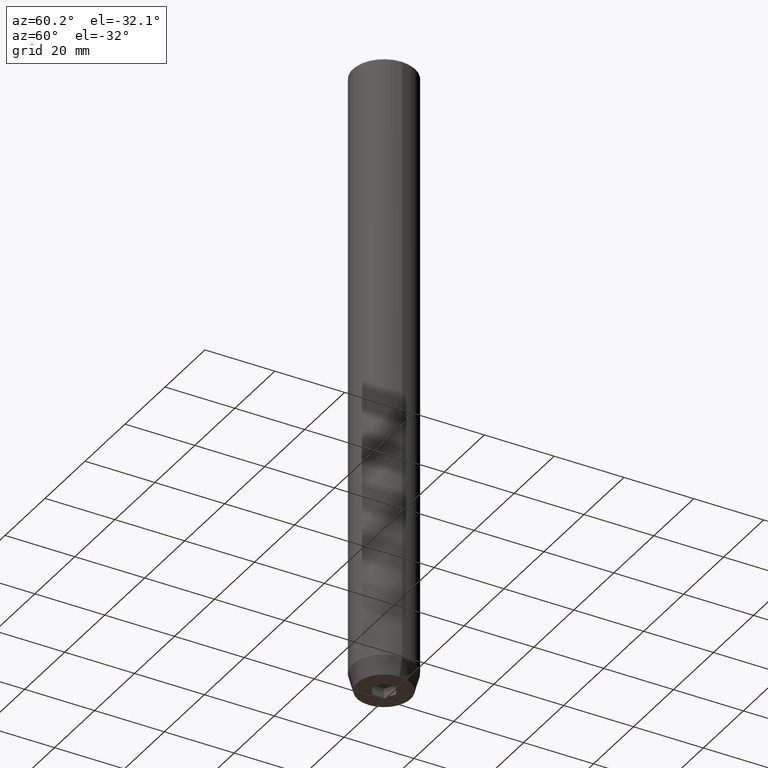
[diagram: clean part render]
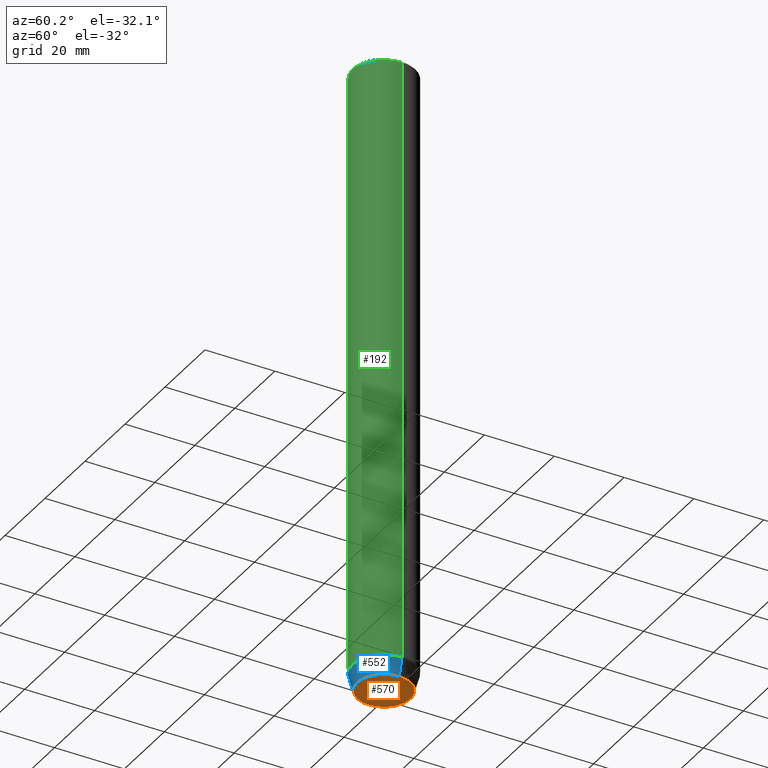
[diagram: same view with three faces highlighted in distinct colors, each labeled with its STEP entity id]
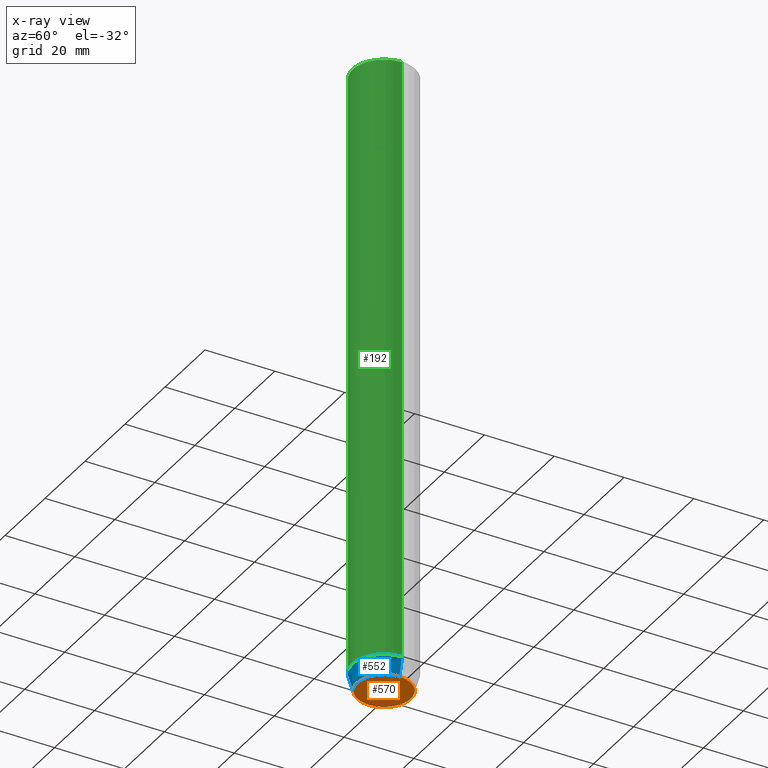
[diagram: x-ray of the same camera — body ghosted, the three highlighted faces saturated]
A machine part, auxiliary view with three faces highlighted in distinct colors.
The next image is the same camera in x-ray (body ghosted, the three faces saturated) — at least one of them is partly hidden behind the body in this view.
Their STEP definitions:

[orange] entity #570 — the highlighted planar face has unit normal (0, 0, -1).
#1 = EDGE_CURVE ( 'NONE', #370, #378, #107, .T. ) ;
#19 = VERTEX_POINT ( 'NONE', #318 ) ;
#23 = DIRECTION ( 'NONE',  ( -0.000000000000000000, -0.000000000000000000, 1.000000000000000000 ) ) ;
#38 = LINE ( 'NONE', #343, #577 ) ;
#41 = CARTESIAN_POINT ( 'NONE',  ( -3.000000000000000888, 1.732050807568876527, -180.0000000000000000 ) ) ;
#43 = LINE ( 'NONE', #92, #575 ) ;
#51 = DIRECTION ( 'NONE',  ( 0.8660254037844387076, 0.4999999999999999445, 0.000000000000000000 ) ) ;
#62 = VERTEX_POINT ( 'NONE', #413 ) ;
#69 = VECTOR ( 'NONE', #199, 1000.000000000000000 ) ;
#75 = EDGE_CURVE ( 'NONE', #19, #280, #219, .T. ) ;
#78 = CARTESIAN_POINT ( 'NONE',  ( 0.000000000000000000, 3.464101615137754386, -180.0000000000000000 ) ) ;
#79 = AXIS2_PLACEMENT_3D ( 'NONE', #232, #461, #291 ) ;
#86 = LINE ( 'NONE', #405, #259 ) ;
#92 = CARTESIAN_POINT ( 'NONE',  ( -1.500000000000000666, -2.598076211353316456, -180.0000000000000000 ) ) ;
#99 = ORIENTED_EDGE ( 'NONE', *, *, #139, .F. ) ;
#104 = CARTESIAN_POINT ( 'NONE',  ( 1.500000000000000222, 2.598076211353315568, -180.0000000000000000 ) ) ;
#106 = LINE ( 'NONE', #229, #376 ) ;
#107 = LINE ( 'NONE', #579, #274 ) ;
#118 = CARTESIAN_POINT ( 'NONE',  ( -7.660254037844380193, 1.020146339021394272E-15, -180.0000000000000000 ) ) ;
#119 = EDGE_CURVE ( 'NONE', #280, #19, #532, .T. ) ;
#125 = DIRECTION ( 'NONE',  ( -0.000000000000000000, -0.000000000000000000, 1.000000000000000000 ) ) ;
#130 = ORIENTED_EDGE ( 'NONE', *, *, #119, .F. ) ;
#131 = DIRECTION ( 'NONE',  ( -0.8660254037844385966, 0.5000000000000001110, 0.000000000000000000 ) ) ;
#137 = FACE_BOUND ( 'NONE', #298, .T. ) ;
#139 = EDGE_CURVE ( 'NONE', #240, #62, #146, .T. ) ;
#146 = LINE ( 'NONE', #104, #69 ) ;
#177 = EDGE_LOOP ( 'NONE', ( #184, #130 ) ) ;
#184 = ORIENTED_EDGE ( 'NONE', *, *, #75, .F. ) ;
#199 = DIRECTION ( 'NONE',  ( 0.8660254037844385966, -0.5000000000000001110, 0.000000000000000000 ) ) ;
#213 = DIRECTION ( 'NONE',  ( 0.000000000000000000, -1.000000000000000000, 0.000000000000000000 ) ) ;
#219 = CIRCLE ( 'NONE', #419, 7.660254037844380193 ) ;
#224 = ORIENTED_EDGE ( 'NONE', *, *, #402, .F. ) ;
#225 = EDGE_CURVE ( 'NONE', #62, #227, #38, .T. ) ;
#226 = CARTESIAN_POINT ( 'NONE',  ( -3.000000000000000000, -1.732050807568877859, -180.0000000000000000 ) ) ;
#227 = VERTEX_POINT ( 'NONE', #521 ) ;
#229 = CARTESIAN_POINT ( 'NONE',  ( -1.499999999999999556, 2.598076211353316012, -180.0000000000000000 ) ) ;
#231 = ORIENTED_EDGE ( 'NONE', *, *, #1, .F. ) ;
#232 = CARTESIAN_POINT ( 'NONE',  ( 0.000000000000000000, 7.660254037844380193, -180.0000000000000000 ) ) ;
#240 = VERTEX_POINT ( 'NONE', #78 ) ;
#253 = CARTESIAN_POINT ( 'NONE',  ( 0.000000000000000000, 0.000000000000000000, -180.0000000000000000 ) ) ;
#259 = VECTOR ( 'NONE', #268, 1000.000000000000000 ) ;
#268 = DIRECTION ( 'NONE',  ( -0.8660254037844385966, -0.5000000000000001110, 0.000000000000000000 ) ) ;
#274 = VECTOR ( 'NONE', #582, 1000.000000000000000 ) ;
#280 = VERTEX_POINT ( 'NONE', #118 ) ;
#291 = DIRECTION ( 'NONE',  ( -1.000000000000000000, 0.000000000000000000, -0.000000000000000000 ) ) ;
#298 = EDGE_LOOP ( 'NONE', ( #508, #231, #360, #224, #470, #99 ) ) ;
#308 = DIRECTION ( 'NONE',  ( 1.000000000000000000, 0.000000000000000000, 0.000000000000000000 ) ) ;
#318 = CARTESIAN_POINT ( 'NONE',  ( 7.660254037844380193, 0.000000000000000000, -180.0000000000000000 ) ) ;
#333 = PLANE ( 'NONE',  #79 ) ;
#336 = CARTESIAN_POINT ( 'NONE',  ( -2.168404344971008868E-16, -3.464101615137754830, -180.0000000000000000 ) ) ;
#343 = CARTESIAN_POINT ( 'NONE',  ( 3.000000000000000000, 0.000000000000000000, -180.0000000000000000 ) ) ;
#350 = EDGE_CURVE ( 'NONE', #499, #370, #43, .T. ) ;
#360 = ORIENTED_EDGE ( 'NONE', *, *, #350, .F. ) ;
#370 = VERTEX_POINT ( 'NONE', #226 ) ;
#375 = FACE_OUTER_BOUND ( 'NONE', #177, .T. ) ;
#376 = VECTOR ( 'NONE', #51, 999.9999999999998863 ) ;
#378 = VERTEX_POINT ( 'NONE', #41 ) ;
#396 = AXIS2_PLACEMENT_3D ( 'NONE', #253, #23, #510 ) ;
#402 = EDGE_CURVE ( 'NONE', #227, #499, #86, .T. ) ;
#405 = CARTESIAN_POINT ( 'NONE',  ( 1.500000000000000222, -2.598076211353315568, -180.0000000000000000 ) ) ;
#413 = CARTESIAN_POINT ( 'NONE',  ( 3.000000000000000000, 1.732050807568876527, -180.0000000000000000 ) ) ;
#419 = AXIS2_PLACEMENT_3D ( 'NONE', #518, #125, #308 ) ;
#461 = DIRECTION ( 'NONE',  ( 0.000000000000000000, 0.000000000000000000, -1.000000000000000000 ) ) ;
#470 = ORIENTED_EDGE ( 'NONE', *, *, #225, .F. ) ;
#496 = EDGE_CURVE ( 'NONE', #378, #240, #106, .T. ) ;
#499 = VERTEX_POINT ( 'NONE', #336 ) ;
#508 = ORIENTED_EDGE ( 'NONE', *, *, #496, .F. ) ;
#510 = DIRECTION ( 'NONE',  ( 1.000000000000000000, 0.000000000000000000, 0.000000000000000000 ) ) ;
#518 = CARTESIAN_POINT ( 'NONE',  ( 0.000000000000000000, 0.000000000000000000, -180.0000000000000000 ) ) ;
#521 = CARTESIAN_POINT ( 'NONE',  ( 3.000000000000000000, -1.732050807568876527, -180.0000000000000000 ) ) ;
#532 = CIRCLE ( 'NONE', #396, 7.660254037844380193 ) ;
#570 = ADVANCED_FACE ( 'NONE', ( #137, #375 ), #333, .T. ) ;
#575 = VECTOR ( 'NONE', #131, 1000.000000000000000 ) ;
#577 = VECTOR ( 'NONE', #213, 1000.000000000000000 ) ;
#579 = CARTESIAN_POINT ( 'NONE',  ( -3.000000000000000444, -7.511572993685800087E-16, -180.0000000000000000 ) ) ;
#582 = DIRECTION ( 'NONE',  ( -2.503857664561932376E-16, 1.000000000000000000, 0.000000000000000000 ) ) ;

[blue] entity #552 — the highlighted conical surface has half-angle 15 deg.
#19 = VERTEX_POINT ( 'NONE', #318 ) ;
#23 = DIRECTION ( 'NONE',  ( -0.000000000000000000, -0.000000000000000000, 1.000000000000000000 ) ) ;
#74 = LINE ( 'NONE', #358, #401 ) ;
#88 = CIRCLE ( 'NONE', #417, 9.000000000000000000 ) ;
#90 = DIRECTION ( 'NONE',  ( -0.000000000000000000, -0.000000000000000000, 1.000000000000000000 ) ) ;
#100 = DIRECTION ( 'NONE',  ( -0.000000000000000000, -0.000000000000000000, 1.000000000000000000 ) ) ;
#118 = CARTESIAN_POINT ( 'NONE',  ( -7.660254037844380193, 1.020146339021394272E-15, -180.0000000000000000 ) ) ;
#119 = EDGE_CURVE ( 'NONE', #280, #19, #532, .T. ) ;
#135 = CARTESIAN_POINT ( 'NONE',  ( 9.000000000000000000, 0.000000000000000000, -175.0000000000000000 ) ) ;
#141 = LINE ( 'NONE', #379, #584 ) ;
#196 = ORIENTED_EDGE ( 'NONE', *, *, #237, .F. ) ;
#197 = FACE_OUTER_BOUND ( 'NONE', #294, .T. ) ;
#215 = DIRECTION ( 'NONE',  ( -0.2588190451025214611, 3.169619151431774186E-17, 0.9659258262890679791 ) ) ;
#233 = ORIENTED_EDGE ( 'NONE', *, *, #530, .T. ) ;
#236 = CARTESIAN_POINT ( 'NONE',  ( 0.000000000000000000, 0.000000000000000000, -175.0000000000000000 ) ) ;
#237 = EDGE_CURVE ( 'NONE', #280, #432, #74, .T. ) ;
#253 = CARTESIAN_POINT ( 'NONE',  ( 0.000000000000000000, 0.000000000000000000, -180.0000000000000000 ) ) ;
#280 = VERTEX_POINT ( 'NONE', #118 ) ;
#294 = EDGE_LOOP ( 'NONE', ( #196, #368, #233, #301 ) ) ;
#295 = DIRECTION ( 'NONE',  ( 1.000000000000000000, 0.000000000000000000, 0.000000000000000000 ) ) ;
#301 = ORIENTED_EDGE ( 'NONE', *, *, #390, .F. ) ;
#318 = CARTESIAN_POINT ( 'NONE',  ( 7.660254037844380193, 0.000000000000000000, -180.0000000000000000 ) ) ;
#358 = CARTESIAN_POINT ( 'NONE',  ( -9.000000000000000000, 1.102182119232617714E-15, -175.0000000000000000 ) ) ;
#368 = ORIENTED_EDGE ( 'NONE', *, *, #119, .T. ) ;
#379 = CARTESIAN_POINT ( 'NONE',  ( 9.000000000000000000, 0.000000000000000000, -175.0000000000000000 ) ) ;
#387 = AXIS2_PLACEMENT_3D ( 'NONE', #236, #100, #295 ) ;
#390 = EDGE_CURVE ( 'NONE', #432, #460, #88, .T. ) ;
#396 = AXIS2_PLACEMENT_3D ( 'NONE', #253, #23, #510 ) ;
#401 = VECTOR ( 'NONE', #215, 1000.000000000000114 ) ;
#417 = AXIS2_PLACEMENT_3D ( 'NONE', #444, #90, #587 ) ;
#432 = VERTEX_POINT ( 'NONE', #447 ) ;
#444 = CARTESIAN_POINT ( 'NONE',  ( 0.000000000000000000, 0.000000000000000000, -175.0000000000000000 ) ) ;
#447 = CARTESIAN_POINT ( 'NONE',  ( -9.000000000000000000, 1.102182119232617714E-15, -175.0000000000000000 ) ) ;
#460 = VERTEX_POINT ( 'NONE', #135 ) ;
#469 = DIRECTION ( 'NONE',  ( 0.2588190451025214611, 0.000000000000000000, 0.9659258262890679791 ) ) ;
#510 = DIRECTION ( 'NONE',  ( 1.000000000000000000, 0.000000000000000000, 0.000000000000000000 ) ) ;
#530 = EDGE_CURVE ( 'NONE', #19, #460, #141, .T. ) ;
#531 = CONICAL_SURFACE ( 'NONE', #387, 9.000000000000000000, 0.2617993877991502405 ) ;
#532 = CIRCLE ( 'NONE', #396, 7.660254037844380193 ) ;
#552 = ADVANCED_FACE ( 'NONE', ( #197 ), #531, .T. ) ;
#584 = VECTOR ( 'NONE', #469, 1000.000000000000114 ) ;
#587 = DIRECTION ( 'NONE',  ( 1.000000000000000000, 0.000000000000000000, 0.000000000000000000 ) ) ;

[green] entity #192 — the highlighted cylindrical surface (edge-blend (fillet) strip) has radius 9 mm, axis along (-0, -0, 1).
#7 = VECTOR ( 'NONE', #493, 1000.000000000000000 ) ;
#9 = EDGE_LOOP ( 'NONE', ( #468, #83, #516, #12 ) ) ;
#12 = ORIENTED_EDGE ( 'NONE', *, *, #276, .T. ) ;
#27 = AXIS2_PLACEMENT_3D ( 'NONE', #394, #562, #309 ) ;
#28 = DIRECTION ( 'NONE',  ( -0.000000000000000000, -0.000000000000000000, 1.000000000000000000 ) ) ;
#61 = CARTESIAN_POINT ( 'NONE',  ( 9.000000000000000000, 0.000000000000000000, 0.000000000000000000 ) ) ;
#71 = CYLINDRICAL_SURFACE ( 'NONE', #565, 9.000000000000000000 ) ;
#81 = CIRCLE ( 'NONE', #27, 9.000000000000000000 ) ;
#83 = ORIENTED_EDGE ( 'NONE', *, *, #390, .T. ) ;
#88 = CIRCLE ( 'NONE', #417, 9.000000000000000000 ) ;
#90 = DIRECTION ( 'NONE',  ( -0.000000000000000000, -0.000000000000000000, 1.000000000000000000 ) ) ;
#135 = CARTESIAN_POINT ( 'NONE',  ( 9.000000000000000000, 0.000000000000000000, -175.0000000000000000 ) ) ;
#160 = CARTESIAN_POINT ( 'NONE',  ( 9.000000000000000000, 0.000000000000000000, -0.5000000000000229816 ) ) ;
#164 = DIRECTION ( 'NONE',  ( 1.000000000000000000, 0.000000000000000000, 0.000000000000000000 ) ) ;
#192 = ADVANCED_FACE ( 'NONE', ( #476 ), #71, .T. ) ;
#249 = CARTESIAN_POINT ( 'NONE',  ( 0.000000000000000000, 0.000000000000000000, 0.000000000000000000 ) ) ;
#276 = EDGE_CURVE ( 'NONE', #282, #474, #81, .T. ) ;
#282 = VERTEX_POINT ( 'NONE', #160 ) ;
#309 = DIRECTION ( 'NONE',  ( 1.000000000000000000, 0.000000000000000000, 0.000000000000000000 ) ) ;
#324 = CARTESIAN_POINT ( 'NONE',  ( -9.000000000000000000, 1.102182119232617714E-15, -0.5000000000000229816 ) ) ;
#390 = EDGE_CURVE ( 'NONE', #432, #460, #88, .T. ) ;
#394 = CARTESIAN_POINT ( 'NONE',  ( 0.000000000000000000, 0.000000000000000000, -0.5000000000000229816 ) ) ;
#417 = AXIS2_PLACEMENT_3D ( 'NONE', #444, #90, #587 ) ;
#426 = EDGE_CURVE ( 'NONE', #432, #474, #540, .T. ) ;
#427 = LINE ( 'NONE', #61, #564 ) ;
#432 = VERTEX_POINT ( 'NONE', #447 ) ;
#444 = CARTESIAN_POINT ( 'NONE',  ( 0.000000000000000000, 0.000000000000000000, -175.0000000000000000 ) ) ;
#447 = CARTESIAN_POINT ( 'NONE',  ( -9.000000000000000000, 1.102182119232617714E-15, -175.0000000000000000 ) ) ;
#459 = DIRECTION ( 'NONE',  ( -0.000000000000000000, -0.000000000000000000, 1.000000000000000000 ) ) ;
#460 = VERTEX_POINT ( 'NONE', #135 ) ;
#468 = ORIENTED_EDGE ( 'NONE', *, *, #426, .F. ) ;
#474 = VERTEX_POINT ( 'NONE', #324 ) ;
#476 = FACE_OUTER_BOUND ( 'NONE', #9, .T. ) ;
#493 = DIRECTION ( 'NONE',  ( -0.000000000000000000, -0.000000000000000000, 1.000000000000000000 ) ) ;
#503 = EDGE_CURVE ( 'NONE', #460, #282, #427, .T. ) ;
#516 = ORIENTED_EDGE ( 'NONE', *, *, #503, .T. ) ;
#540 = LINE ( 'NONE', #580, #7 ) ;
#562 = DIRECTION ( 'NONE',  ( 0.000000000000000000, 0.000000000000000000, -1.000000000000000000 ) ) ;
#564 = VECTOR ( 'NONE', #459, 1000.000000000000000 ) ;
#565 = AXIS2_PLACEMENT_3D ( 'NONE', #249, #28, #164 ) ;
#580 = CARTESIAN_POINT ( 'NONE',  ( -9.000000000000000000, 1.102182119232617714E-15, 0.000000000000000000 ) ) ;
#587 = DIRECTION ( 'NONE',  ( 1.000000000000000000, 0.000000000000000000, 0.000000000000000000 ) ) ;